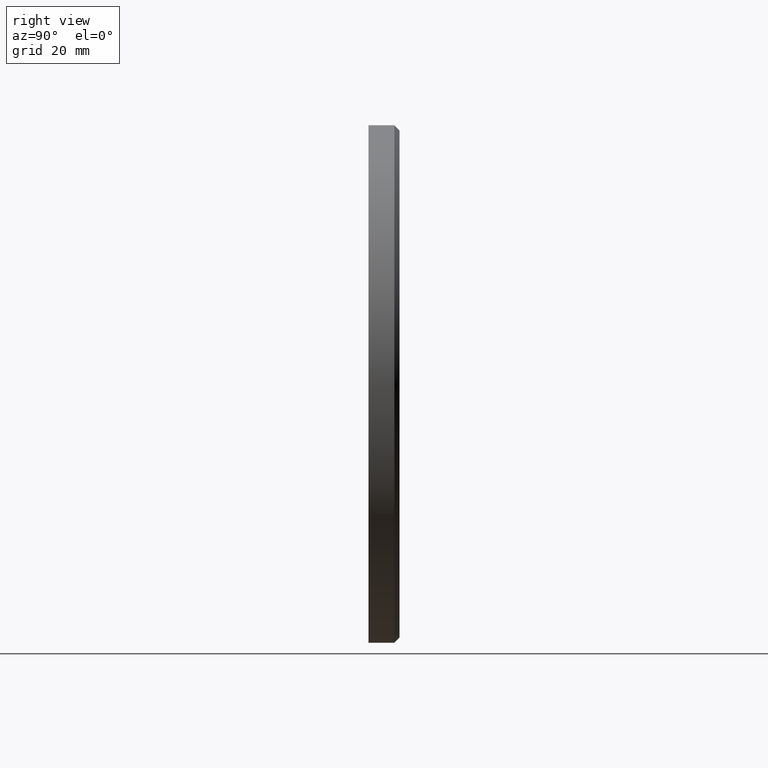
[diagram: clean part render]
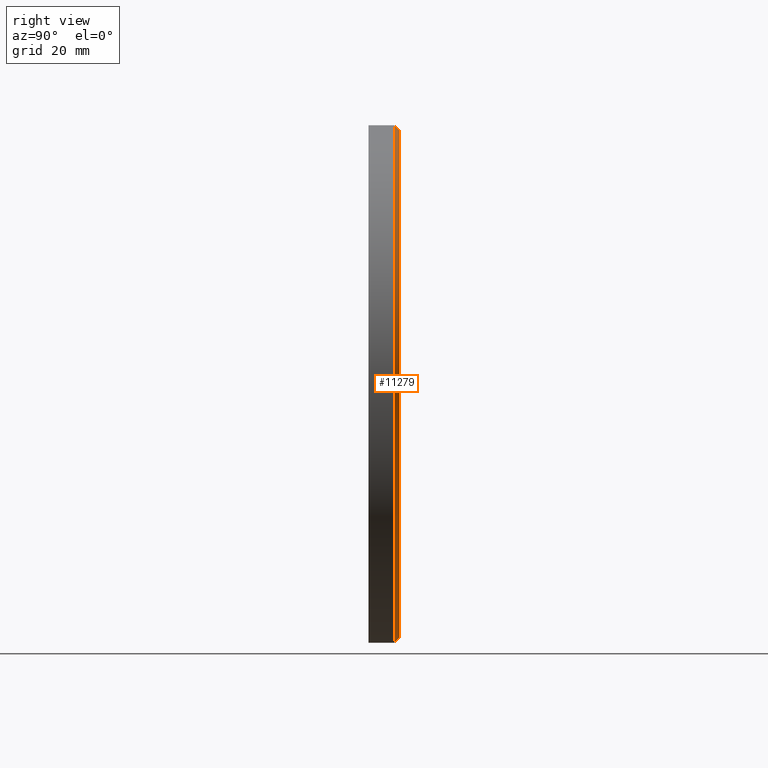
[diagram: same view with one face highlighted and labeled with its STEP entity id]
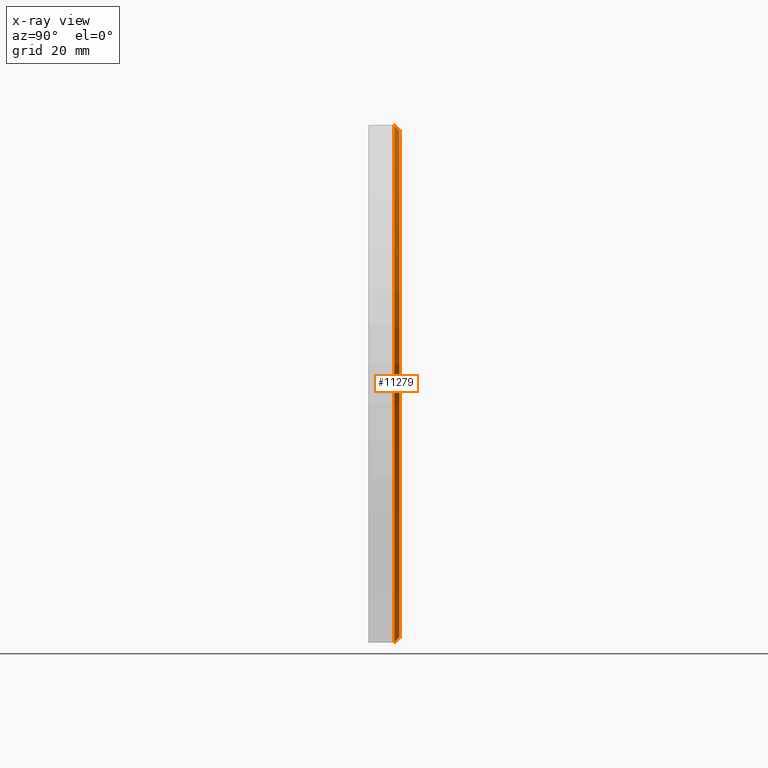
[diagram: x-ray of the same camera — body ghosted, the highlighted face saturated]
A machine part, right view. The second image highlights one B-rep face of the part: STEP entity #11279.
The next image is the same camera in x-ray: the body ghosted, the highlighted face saturated — about 0% of this face is hidden behind the body in this view.
In plain terms, the highlighted conical surface has half-angle 45 deg.
Its self-contained STEP definition (entity closure, byte-faithful):
#435 = VERTEX_POINT ( 'NONE', #10457 ) ;
#823 = DIRECTION ( 'NONE',  ( 0.000000000000000000, 0.000000000000000000, -1.000000000000000000 ) ) ;
#1691 = CIRCLE ( 'NONE', #4603, 50.00000000000000000 ) ;
#2513 = ORIENTED_EDGE ( 'NONE', *, *, #3115, .T. ) ;
#2571 = AXIS2_PLACEMENT_3D ( 'NONE', #14186, #3083, #823 ) ;
#3083 = DIRECTION ( 'NONE',  ( 0.000000000000000000, -1.000000000000000000, 0.000000000000000000 ) ) ;
#3115 = EDGE_CURVE ( 'NONE', #10334, #7557, #12923, .T. ) ;
#3118 = DIRECTION ( 'NONE',  ( 8.659560562354844111E-17, -0.7071067811865549002, 0.7071067811865401342 ) ) ;
#3438 = ORIENTED_EDGE ( 'NONE', *, *, #11461, .F. ) ;
#3470 = CARTESIAN_POINT ( 'NONE',  ( 0.000000000000000000, 3.000000000000000000, -49.00000000000002132 ) ) ;
#3566 = DIRECTION ( 'NONE',  ( 0.000000000000000000, -0.7071067811865549002, -0.7071067811865401342 ) ) ;
#4208 = CARTESIAN_POINT ( 'NONE',  ( 6.000769315822033304E-15, 3.000000000000000000, 49.00000000000002132 ) ) ;
#4603 = AXIS2_PLACEMENT_3D ( 'NONE', #11125, #6595, #11226 ) ;
#5013 = VECTOR ( 'NONE', #3566, 1000.000000000000000 ) ;
#5767 = ORIENTED_EDGE ( 'NONE', *, *, #6519, .F. ) ;
#6366 = CONICAL_SURFACE ( 'NONE', #2571, 49.00000000000002132, 0.7853981633974378429 ) ;
#6519 = EDGE_CURVE ( 'NONE', #10334, #6625, #10233, .T. ) ;
#6595 = DIRECTION ( 'NONE',  ( 0.000000000000000000, -1.000000000000000000, 0.000000000000000000 ) ) ;
#6625 = VERTEX_POINT ( 'NONE', #10129 ) ;
#6684 = EDGE_CURVE ( 'NONE', #6625, #435, #13900, .T. ) ;
#7557 = VERTEX_POINT ( 'NONE', #8666 ) ;
#7805 = DIRECTION ( 'NONE',  ( 0.000000000000000000, 1.000000000000000000, 0.000000000000000000 ) ) ;
#8666 = CARTESIAN_POINT ( 'NONE',  ( 6.123233995736766085E-15, 1.999999999999999112, 50.00000000000000000 ) ) ;
#8777 = AXIS2_PLACEMENT_3D ( 'NONE', #11222, #7805, #13510 ) ;
#9999 = FACE_OUTER_BOUND ( 'NONE', #10344, .T. ) ;
#10129 = CARTESIAN_POINT ( 'NONE',  ( 0.000000000000000000, 3.000000000000000000, -49.00000000000002132 ) ) ;
#10233 = CIRCLE ( 'NONE', #8777, 49.00000000000002132 ) ;
#10334 = VERTEX_POINT ( 'NONE', #14426 ) ;
#10344 = EDGE_LOOP ( 'NONE', ( #5767, #2513, #3438, #10630 ) ) ;
#10457 = CARTESIAN_POINT ( 'NONE',  ( 0.000000000000000000, 1.999999999999999112, -50.00000000000000000 ) ) ;
#10630 = ORIENTED_EDGE ( 'NONE', *, *, #6684, .F. ) ;
#11125 = CARTESIAN_POINT ( 'NONE',  ( 0.000000000000000000, 1.999999999999999112, 0.000000000000000000 ) ) ;
#11222 = CARTESIAN_POINT ( 'NONE',  ( 0.000000000000000000, 3.000000000000000000, 0.000000000000000000 ) ) ;
#11226 = DIRECTION ( 'NONE',  ( 0.000000000000000000, 0.000000000000000000, 1.000000000000000000 ) ) ;
#11279 = ADVANCED_FACE ( 'NONE', ( #9999 ), #6366, .T. ) ;
#11461 = EDGE_CURVE ( 'NONE', #435, #7557, #1691, .T. ) ;
#11865 = VECTOR ( 'NONE', #3118, 1000.000000000000000 ) ;
#12923 = LINE ( 'NONE', #4208, #11865 ) ;
#13510 = DIRECTION ( 'NONE',  ( 0.000000000000000000, 0.000000000000000000, 1.000000000000000000 ) ) ;
#13900 = LINE ( 'NONE', #3470, #5013 ) ;
#14186 = CARTESIAN_POINT ( 'NONE',  ( 0.000000000000000000, 3.000000000000000000, 0.000000000000000000 ) ) ;
#14426 = CARTESIAN_POINT ( 'NONE',  ( 6.062001655779400089E-15, 3.000000000000000000, 49.00000000000002132 ) ) ;